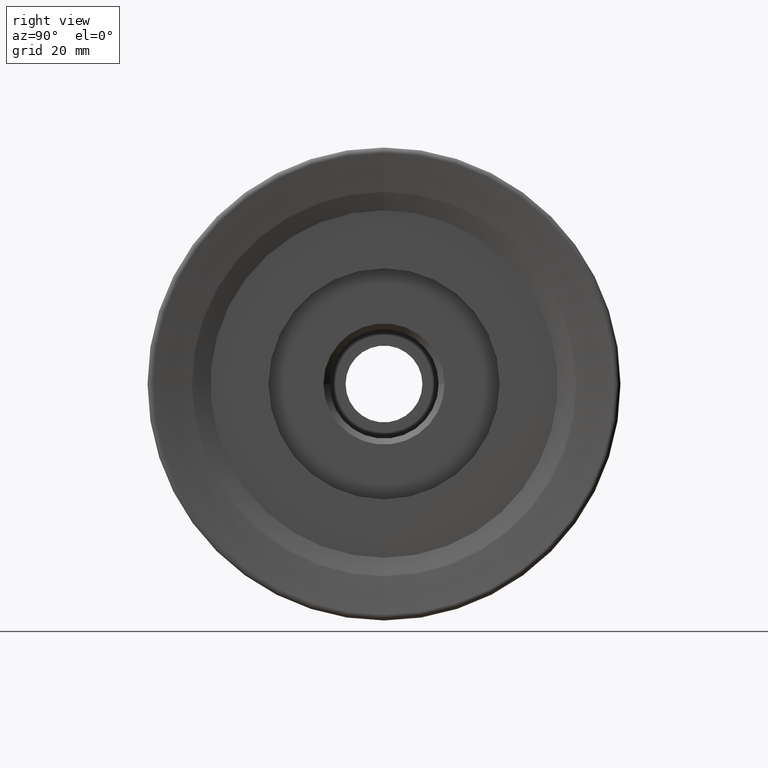
[diagram: clean part render]
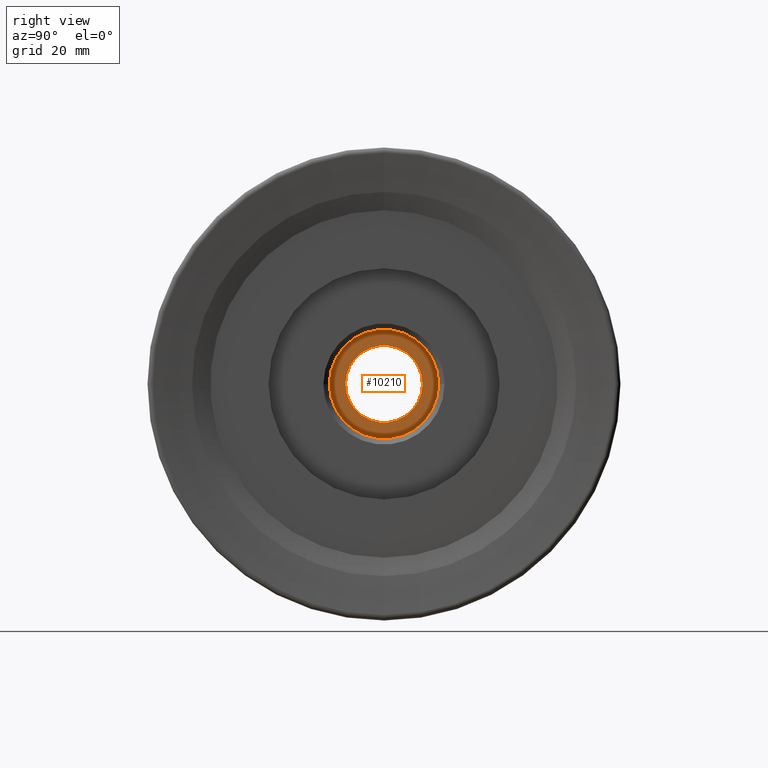
[diagram: same view with one face highlighted and labeled with its STEP entity id]
A machine part, right view. The second image highlights one B-rep face of the part: STEP entity #10210.
In plain terms, the highlighted planar face has unit normal (-1, -0, 0).
Its self-contained STEP definition (entity closure, byte-faithful):
#501 = CARTESIAN_POINT ( 'NONE',  ( -16.00000000000000000, 9.249999999999996400, 0.0000000000000000000 ) ) ;
#502 = PLANE ( 'NONE',  #982 ) ;
#503 = DIRECTION ( 'NONE',  ( -1.000000000000000000, -1.224606353822377300E-016, 0.0000000000000000000 ) ) ;
#504 = DIRECTION ( 'NONE',  ( 1.224606353822377300E-016, -1.000000000000000000, 0.0000000000000000000 ) ) ;
#982 = AXIS2_PLACEMENT_3D ( 'NONE', #501, #503, #504 ) ;
#1665 = ORIENTED_EDGE ( 'NONE', *, *, #9867, .F. ) ;
#1681 = ORIENTED_EDGE ( 'NONE', *, *, #7466, .F. ) ;
#1726 = ORIENTED_EDGE ( 'NONE', *, *, #7476, .T. ) ;
#1859 = ORIENTED_EDGE ( 'NONE', *, *, #9863, .T. ) ;
#4777 = EDGE_LOOP ( 'NONE', ( #1859, #1726 ) ) ;
#4779 = EDGE_LOOP ( 'NONE', ( #1665, #1681 ) ) ;
#4923 = CIRCLE ( 'NONE', #7977, 6.499999999999999100 ) ;
#4934 = CIRCLE ( 'NONE', #7982, 9.249999999999998200 ) ;
#5840 = AXIS2_PLACEMENT_3D ( 'NONE', #12211, #12212, #12213 ) ;
#5843 = AXIS2_PLACEMENT_3D ( 'NONE', #12197, #12203, #12204 ) ;
#6428 = CARTESIAN_POINT ( 'NONE',  ( -16.00000000000000000, 6.499999999999997300, 0.0000000000000000000 ) ) ;
#6439 = CARTESIAN_POINT ( 'NONE',  ( -16.00000000000000000, -6.500000000000000900, 7.960204194457794500E-016 ) ) ;
#6596 = CARTESIAN_POINT ( 'NONE',  ( -16.00000000000000000, -9.250000000000000000, 1.132798289211301700E-015 ) ) ;
#6834 = CARTESIAN_POINT ( 'NONE',  ( -16.00000000000000000, 9.249999999999996400, 0.0000000000000000000 ) ) ;
#7005 = VERTEX_POINT ( 'NONE', #6439 ) ;
#7110 = VERTEX_POINT ( 'NONE', #6428 ) ;
#7129 = VERTEX_POINT ( 'NONE', #6596 ) ;
#7353 = VERTEX_POINT ( 'NONE', #6834 ) ;
#7466 = EDGE_CURVE ( 'NONE', #7005, #7110, #4923, .T. ) ;
#7476 = EDGE_CURVE ( 'NONE', #7129, #7353, #4934, .T. ) ;
#7977 = AXIS2_PLACEMENT_3D ( 'NONE', #8884, #8932, #8933 ) ;
#7982 = AXIS2_PLACEMENT_3D ( 'NONE', #8906, #8862, #8879 ) ;
#8862 = DIRECTION ( 'NONE',  ( 1.000000000000000000, 1.224606353822377300E-016, -0.0000000000000000000 ) ) ;
#8879 = DIRECTION ( 'NONE',  ( 0.0000000000000000000, 1.000000000000000000, 0.0000000000000000000 ) ) ;
#8884 = CARTESIAN_POINT ( 'NONE',  ( -16.00000000000000000, -1.959370166115803600E-015, 0.0000000000000000000 ) ) ;
#8906 = CARTESIAN_POINT ( 'NONE',  ( -16.00000000000000000, -1.959370166115803600E-015, 0.0000000000000000000 ) ) ;
#8932 = DIRECTION ( 'NONE',  ( 1.000000000000000000, 1.224606353822377300E-016, -0.0000000000000000000 ) ) ;
#8933 = DIRECTION ( 'NONE',  ( 0.0000000000000000000, 1.000000000000000000, 0.0000000000000000000 ) ) ;
#9863 = EDGE_CURVE ( 'NONE', #7353, #7129, #11027, .T. ) ;
#9867 = EDGE_CURVE ( 'NONE', #7110, #7005, #11033, .T. ) ;
#10210 = ADVANCED_FACE ( 'NONE', ( #11440, #11444 ), #502, .F. ) ;
#11027 = CIRCLE ( 'NONE', #5843, 9.249999999999998200 ) ;
#11033 = CIRCLE ( 'NONE', #5840, 6.499999999999999100 ) ;
#11440 = FACE_BOUND ( 'NONE', #4779, .T. ) ;
#11444 = FACE_OUTER_BOUND ( 'NONE', #4777, .T. ) ;
#12197 = CARTESIAN_POINT ( 'NONE',  ( -16.00000000000000000, -1.959370166115803600E-015, 0.0000000000000000000 ) ) ;
#12203 = DIRECTION ( 'NONE',  ( 1.000000000000000000, 1.224606353822377300E-016, -0.0000000000000000000 ) ) ;
#12204 = DIRECTION ( 'NONE',  ( 0.0000000000000000000, 1.000000000000000000, 0.0000000000000000000 ) ) ;
#12211 = CARTESIAN_POINT ( 'NONE',  ( -16.00000000000000000, -1.959370166115803600E-015, 0.0000000000000000000 ) ) ;
#12212 = DIRECTION ( 'NONE',  ( 1.000000000000000000, 1.224606353822377300E-016, -0.0000000000000000000 ) ) ;
#12213 = DIRECTION ( 'NONE',  ( 0.0000000000000000000, 1.000000000000000000, 0.0000000000000000000 ) ) ;